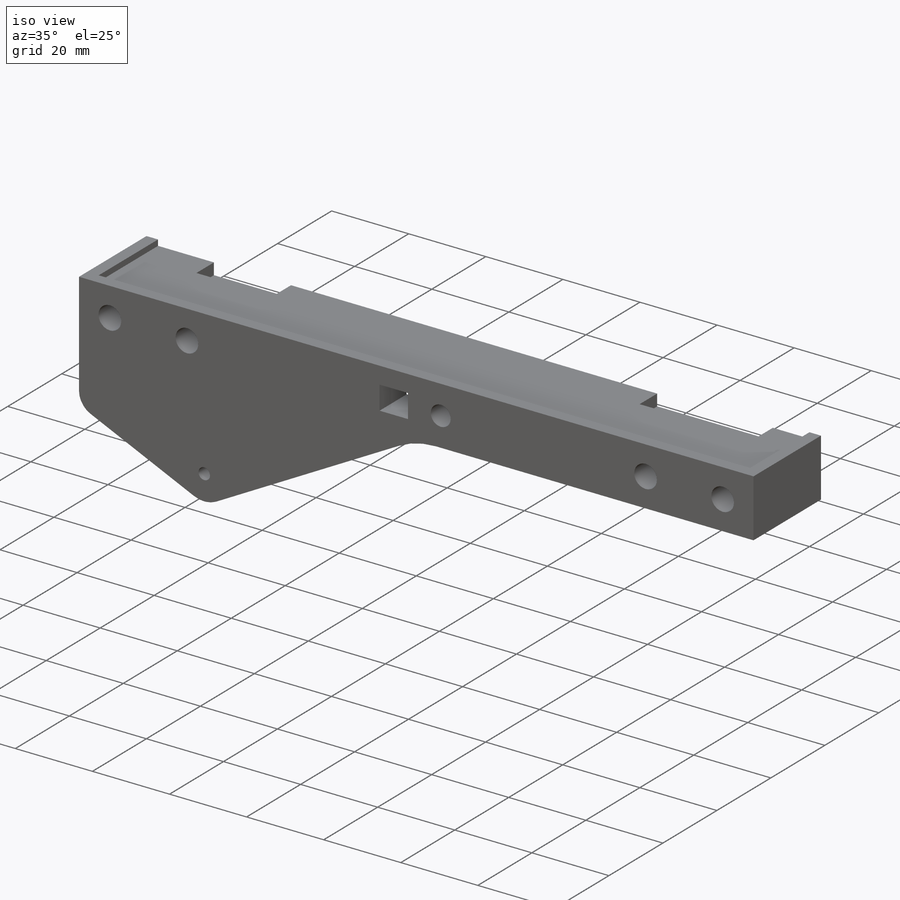
[diagram: iso view]
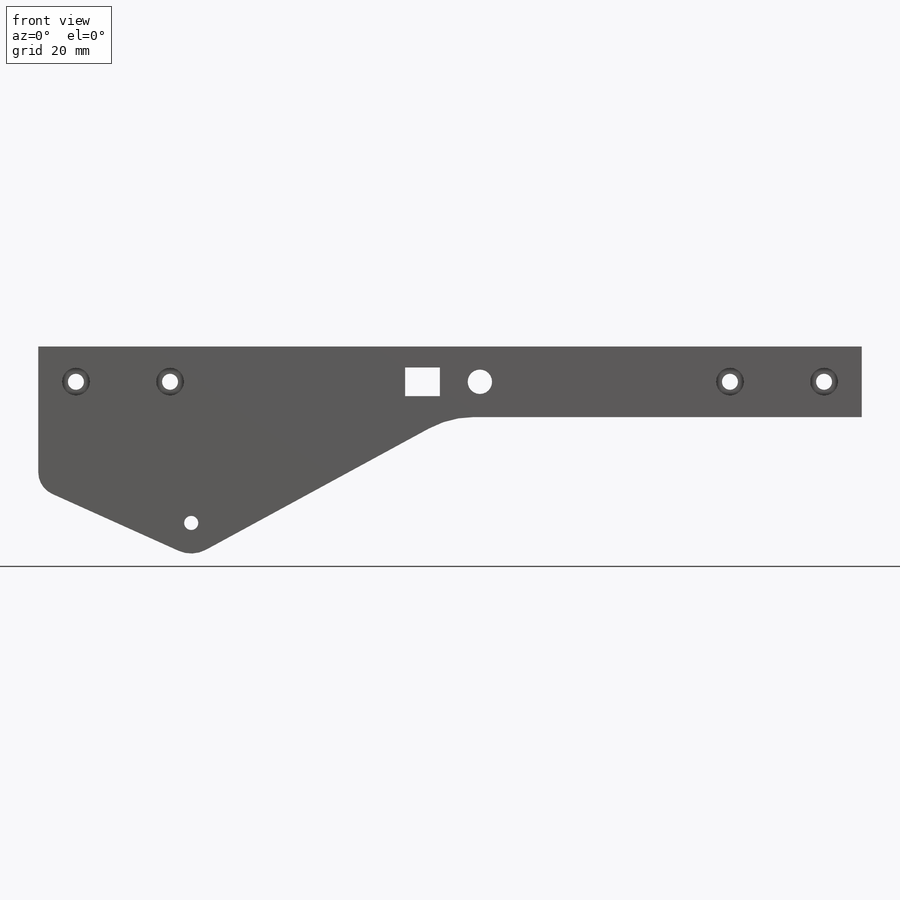
[diagram: front view]
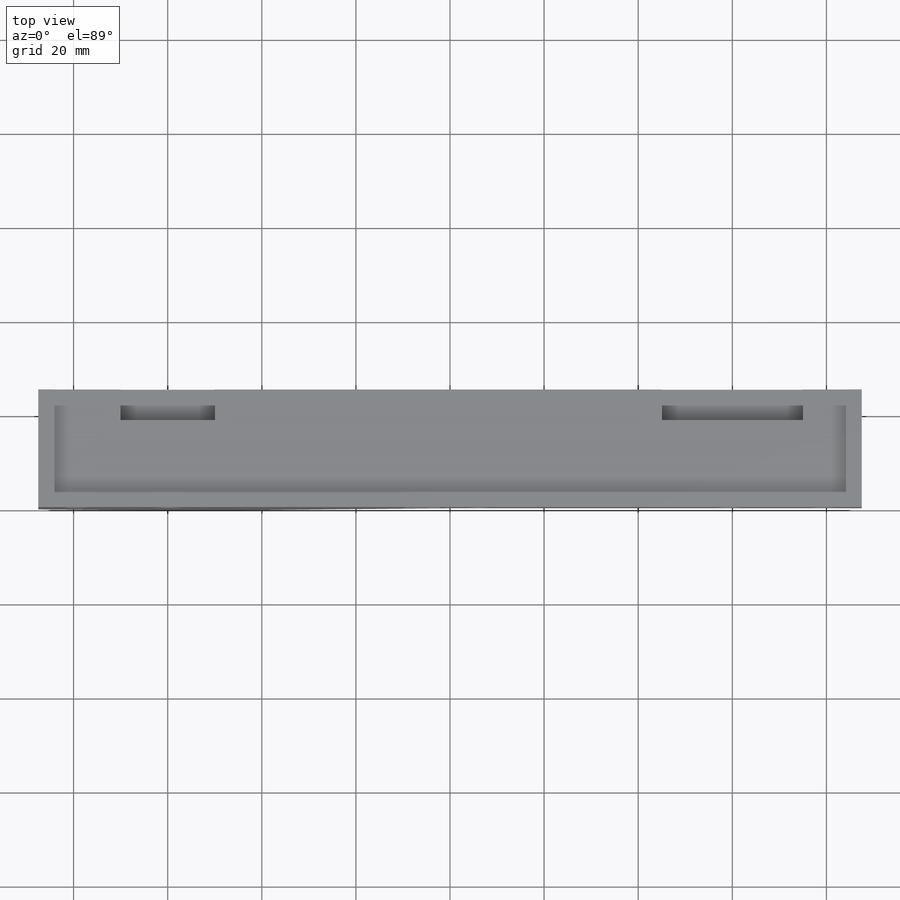
[diagram: top view]
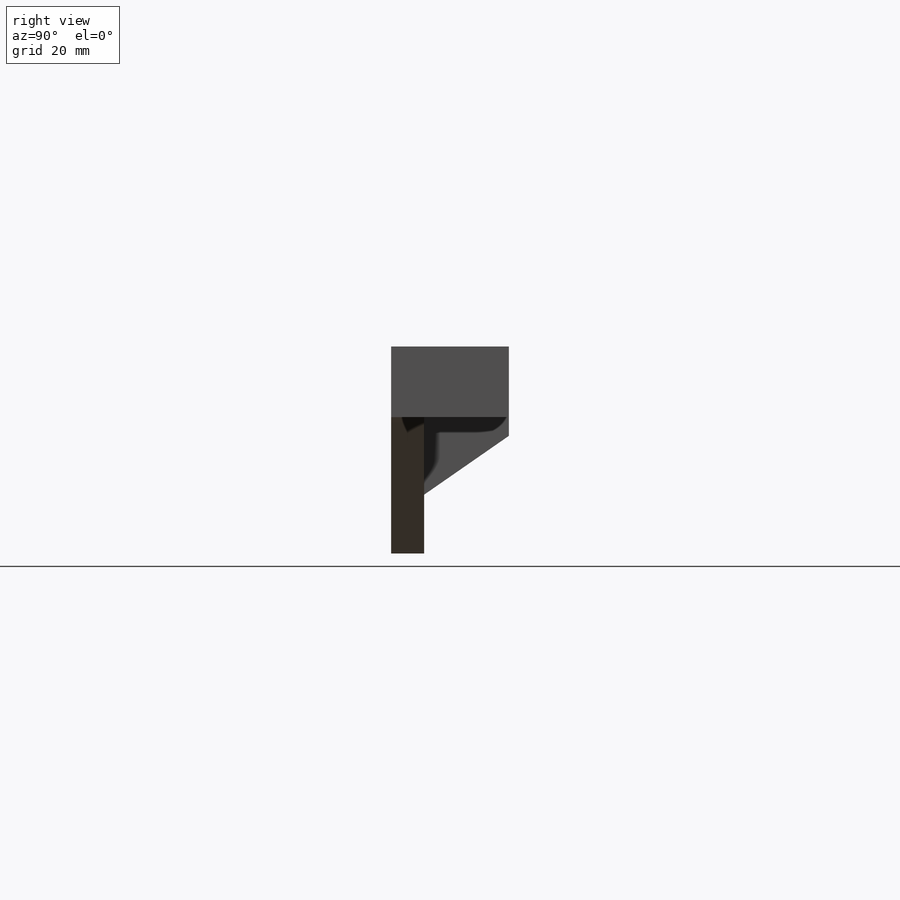
[diagram: right view]
SOLIDWORKS PART (.sldprt)
format: sldprt  version: not decoded by parser v0  size: 564,736 bytes
history: native  units: mm
features: sketch x11, extrude x6, cut_extrude x5, fillet x4, material x1, plane x1 (+16 scaffold rows collapsed)
feature tree (44):
  scaffold x16  (default folders/planes/origin — collapsed)
  material  "Material <not specified>"
  sketch  "Sketch1"  dims[c1.D1=5.18mm c1.D2=6.35mm c1.D3=6.096mm c1.D4=7.366mm c1.D5=12.7mm c1.D6=4.191mm c2.D3=3.4mm c2.D4=3.4mm c2.D5=3.4mm c2.D1=175.0mm c2.D2=15.0mm c3.D4=20.0mm c3.D5=8.0mm]
  extrude  "Boss-Extrude1"  Depth=25mm
  sketch  "Sketch2"  dims[c1.D1=3.0mm c1.D2=~38.591523mm c1.D4=67.31mm c1.D7=5.0mm c2.D2=5.0mm c2.D3=30.0mm c2.D5=55.0mm c2.D6=15.0mm]
  extrude  "Boss-Extrude2"  Depth=1mm
  sketch  "Sketch3"  dims[D1=5.0mm]
  extrude  "Boss-Extrude3"  Depth=6mm
  plane  "Plane1"
  sketch  "Sketch4"  dims[c1.D1=0.5mm c1.D2=4.0mm c2.D1=16.5mm]
  extrude  "Boss-Extrude4"  Depth=3mm
  sketch  "Sketch5"  dims[D1=1.5mm D2=1.5mm]
  extrude  "Boss-Extrude5"  Depth=6mm
  sketch  "Sketch6"  dims[D1=3.0mm]
  cut_extrude  "Cut-Extrude1"  Depth=1.5mm
  sketch  "Sketch7"  dims[D1=20.0mm D2=30.0mm D3=6.5mm D4=60.0mm D5=60.0mm]
  cut_extrude  "Cut-Extrude2"  Depth=3mm
  sketch  "Sketch8"  dims[D1=5.9mm]
  cut_extrude  "Cut-Extrude3"  Depth=5mm
  sketch  "Sketch9"  dims[c1.D7=~8.478683mm c1.D10=3.4mm c1.D1=2.0mm c1.D2=2.0mm c1.D3=2.0mm c1.D4=2.0mm c1.D5=2.0mm c1.D6=8.5mm c2.D7=3.0mm c2.D8=~29.352369mm c3.D8=40.0deg c3.D9=~29.306594mm c4.D9=40.0deg c4.D10=3.0mm c4.D11=~4.988371mm c5.D11=60.0deg c5.D12=~25.915674mm c6.D12=75.0deg]
  cut_extrude  "Cut-Extrude4"  Depth=1mm
  fillet  "Fillet1"  Radius=3mm
  fillet  "Fillet2"  Radius=20mm
  fillet  "Fillet3"  Radius=1mm
  sketch  "Sketch10"
  cut_extrude  "Cut-Extrude5"  Depth=10mm
  sketch  "Sketch11"  dims[D1=1.5mm]
  extrude  "Boss-Extrude6"  [1 undecoded]
  fillet  "Fillet4"  Radius=1mm
decode coverage: 24 of 26 modeling features carry decoded parameters
note: ~ marks probable driven/reference dimensions
note: 1 parameter value undecoded
note: suppression state not decoded; provenance and decode notes live in map.json
